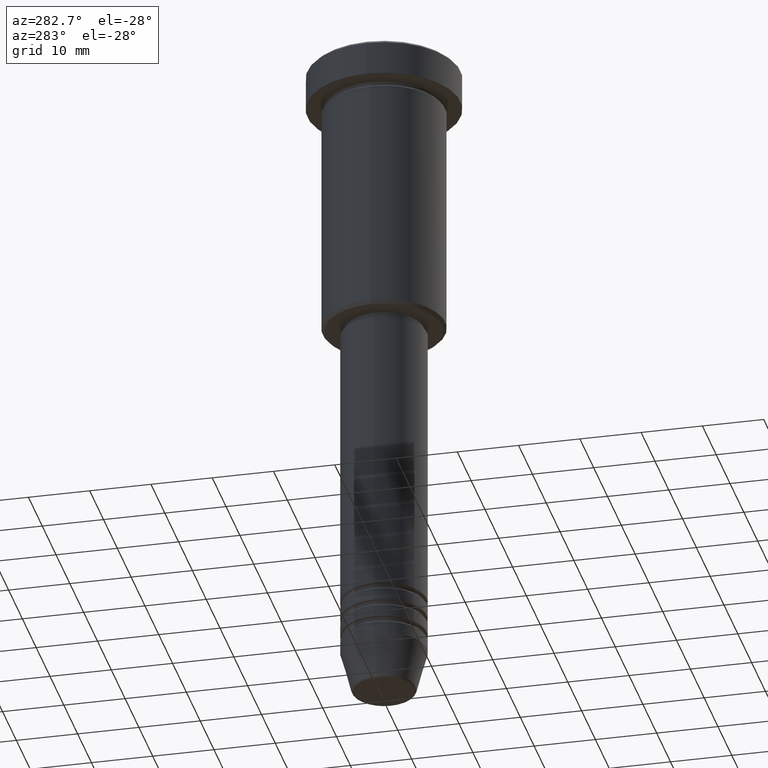
[diagram: clean part render]
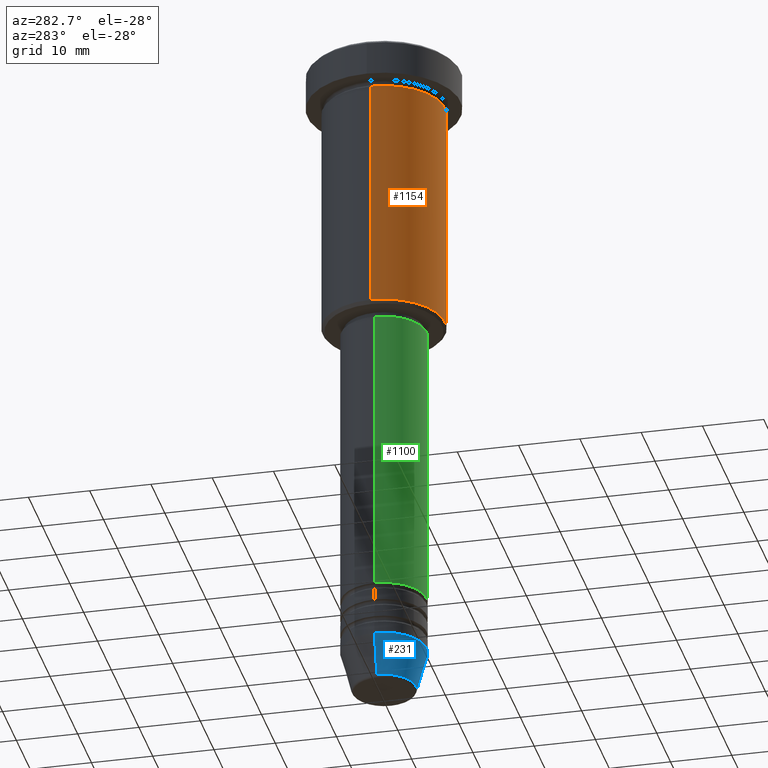
[diagram: same view with three faces highlighted in distinct colors, each labeled with its STEP entity id]
A machine part, auxiliary view with three faces highlighted in distinct colors.
Their STEP definitions:

[orange] entity #1154 — the highlighted cylindrical surface (partial cylindrical patch) has radius 10 mm, axis along (-0, -0, 1).
#22 = CARTESIAN_POINT ( 'NONE',  ( 10.00000000000000000, 0.000000000000000000, -6.999999999999996447 ) ) ;
#36 = DIRECTION ( 'NONE',  ( -0.000000000000000000, -0.000000000000000000, 1.000000000000000000 ) ) ;
#120 = CARTESIAN_POINT ( 'NONE',  ( 10.00000000000000000, 0.000000000000000000, 0.000000000000000000 ) ) ;
#183 = EDGE_CURVE ( 'NONE', #387, #371, #714, .T. ) ;
#224 = EDGE_CURVE ( 'NONE', #387, #999, #1149, .T. ) ;
#300 = CARTESIAN_POINT ( 'NONE',  ( 10.00000000000000000, 0.000000000000000000, -45.49999999999997158 ) ) ;
#331 = FACE_OUTER_BOUND ( 'NONE', #333, .T. ) ;
#333 = EDGE_LOOP ( 'NONE', ( #587, #533, #454, #705 ) ) ;
#339 = DIRECTION ( 'NONE',  ( 1.000000000000000000, 0.000000000000000000, 0.000000000000000000 ) ) ;
#371 = VERTEX_POINT ( 'NONE', #684 ) ;
#387 = VERTEX_POINT ( 'NONE', #765 ) ;
#454 = ORIENTED_EDGE ( 'NONE', *, *, #991, .T. ) ;
#461 = VECTOR ( 'NONE', #844, 1000.000000000000000 ) ;
#468 = DIRECTION ( 'NONE',  ( 1.000000000000000000, 0.000000000000000000, 0.000000000000000000 ) ) ;
#533 = ORIENTED_EDGE ( 'NONE', *, *, #224, .T. ) ;
#587 = ORIENTED_EDGE ( 'NONE', *, *, #183, .F. ) ;
#590 = EDGE_CURVE ( 'NONE', #371, #592, #751, .T. ) ;
#592 = VERTEX_POINT ( 'NONE', #22 ) ;
#632 = AXIS2_PLACEMENT_3D ( 'NONE', #829, #36, #748 ) ;
#641 = CARTESIAN_POINT ( 'NONE',  ( 0.000000000000000000, 0.000000000000000000, -6.999999999999996447 ) ) ;
#656 = AXIS2_PLACEMENT_3D ( 'NONE', #699, #868, #339 ) ;
#684 = CARTESIAN_POINT ( 'NONE',  ( -10.00000000000000000, 1.224646799147353256E-15, -6.999999999999996447 ) ) ;
#685 = CYLINDRICAL_SURFACE ( 'NONE', #656, 10.00000000000000000 ) ;
#699 = CARTESIAN_POINT ( 'NONE',  ( 0.000000000000000000, 0.000000000000000000, 0.000000000000000000 ) ) ;
#705 = ORIENTED_EDGE ( 'NONE', *, *, #590, .F. ) ;
#714 = LINE ( 'NONE', #988, #725 ) ;
#725 = VECTOR ( 'NONE', #1097, 1000.000000000000000 ) ;
#732 = AXIS2_PLACEMENT_3D ( 'NONE', #641, #1008, #468 ) ;
#748 = DIRECTION ( 'NONE',  ( -1.000000000000000000, 0.000000000000000000, 0.000000000000000000 ) ) ;
#751 = CIRCLE ( 'NONE', #732, 10.00000000000000000 ) ;
#765 = CARTESIAN_POINT ( 'NONE',  ( -10.00000000000000000, 1.224646799147353256E-15, -45.49999999999997158 ) ) ;
#829 = CARTESIAN_POINT ( 'NONE',  ( 0.000000000000000000, 0.000000000000000000, -45.49999999999997158 ) ) ;
#844 = DIRECTION ( 'NONE',  ( -0.000000000000000000, -0.000000000000000000, 1.000000000000000000 ) ) ;
#868 = DIRECTION ( 'NONE',  ( -0.000000000000000000, -0.000000000000000000, 1.000000000000000000 ) ) ;
#932 = LINE ( 'NONE', #120, #461 ) ;
#988 = CARTESIAN_POINT ( 'NONE',  ( -10.00000000000000000, 1.224646799147353256E-15, 0.000000000000000000 ) ) ;
#991 = EDGE_CURVE ( 'NONE', #999, #592, #932, .T. ) ;
#999 = VERTEX_POINT ( 'NONE', #300 ) ;
#1008 = DIRECTION ( 'NONE',  ( -0.000000000000000000, -0.000000000000000000, 1.000000000000000000 ) ) ;
#1097 = DIRECTION ( 'NONE',  ( -0.000000000000000000, -0.000000000000000000, 1.000000000000000000 ) ) ;
#1149 = CIRCLE ( 'NONE', #632, 10.00000000000000000 ) ;
#1154 = ADVANCED_FACE ( 'NONE', ( #331 ), #685, .T. ) ;

[blue] entity #231 — the highlighted conical surface has half-angle 15 deg.
#47 = LINE ( 'NONE', #409, #820 ) ;
#66 = EDGE_CURVE ( 'NONE', #563, #859, #47, .T. ) ;
#116 = DIRECTION ( 'NONE',  ( 1.000000000000000000, 0.000000000000000000, 0.000000000000000000 ) ) ;
#143 = CARTESIAN_POINT ( 'NONE',  ( -5.223655072137193045, 7.484830028987060174E-16, -110.6294095225512564 ) ) ;
#151 = ORIENTED_EDGE ( 'NONE', *, *, #571, .T. ) ;
#167 = CARTESIAN_POINT ( 'NONE',  ( 7.000000000000000000, 0.000000000000000000, -104.0000000000000142 ) ) ;
#170 = ORIENTED_EDGE ( 'NONE', *, *, #781, .F. ) ;
#231 = ADVANCED_FACE ( 'NONE', ( #281 ), #261, .T. ) ;
#235 = VERTEX_POINT ( 'NONE', #657 ) ;
#261 = CONICAL_SURFACE ( 'NONE', #497, 7.000000000000000000, 0.2617993877991500740 ) ;
#270 = DIRECTION ( 'NONE',  ( -0.000000000000000000, -0.000000000000000000, 1.000000000000000000 ) ) ;
#281 = FACE_OUTER_BOUND ( 'NONE', #954, .T. ) ;
#305 = VECTOR ( 'NONE', #961, 1000.000000000000000 ) ;
#344 = CIRCLE ( 'NONE', #655, 7.000000000000000000 ) ;
#390 = CARTESIAN_POINT ( 'NONE',  ( 0.000000000000000000, 0.000000000000000000, -104.0000000000000142 ) ) ;
#395 = DIRECTION ( 'NONE',  ( 1.000000000000000000, 0.000000000000000000, 0.000000000000000000 ) ) ;
#409 = CARTESIAN_POINT ( 'NONE',  ( 7.000000000000000000, 0.000000000000000000, -104.0000000000000142 ) ) ;
#497 = AXIS2_PLACEMENT_3D ( 'NONE', #390, #1024, #395 ) ;
#562 = CARTESIAN_POINT ( 'NONE',  ( 5.223655072137193045, 0.000000000000000000, -110.6294095225512564 ) ) ;
#563 = VERTEX_POINT ( 'NONE', #562 ) ;
#571 = EDGE_CURVE ( 'NONE', #1134, #563, #1054, .T. ) ;
#655 = AXIS2_PLACEMENT_3D ( 'NONE', #812, #1176, #973 ) ;
#657 = CARTESIAN_POINT ( 'NONE',  ( -7.000000000000000000, 8.572527594031473190E-16, -104.0000000000000142 ) ) ;
#733 = CARTESIAN_POINT ( 'NONE',  ( 0.000000000000000000, 0.000000000000000000, -110.6294095225512564 ) ) ;
#762 = ORIENTED_EDGE ( 'NONE', *, *, #66, .T. ) ;
#781 = EDGE_CURVE ( 'NONE', #235, #859, #344, .T. ) ;
#812 = CARTESIAN_POINT ( 'NONE',  ( 0.000000000000000000, 0.000000000000000000, -104.0000000000000142 ) ) ;
#820 = VECTOR ( 'NONE', #1135, 1000.000000000000000 ) ;
#859 = VERTEX_POINT ( 'NONE', #167 ) ;
#954 = EDGE_LOOP ( 'NONE', ( #1175, #151, #762, #170 ) ) ;
#961 = DIRECTION ( 'NONE',  ( -0.2588190451025213501, 3.169619151431772337E-17, 0.9659258262890680902 ) ) ;
#973 = DIRECTION ( 'NONE',  ( 1.000000000000000000, 0.000000000000000000, 0.000000000000000000 ) ) ;
#1024 = DIRECTION ( 'NONE',  ( -0.000000000000000000, -0.000000000000000000, 1.000000000000000000 ) ) ;
#1054 = CIRCLE ( 'NONE', #1106, 5.223655072137193045 ) ;
#1106 = AXIS2_PLACEMENT_3D ( 'NONE', #733, #270, #116 ) ;
#1112 = EDGE_CURVE ( 'NONE', #1134, #235, #1161, .T. ) ;
#1134 = VERTEX_POINT ( 'NONE', #143 ) ;
#1135 = DIRECTION ( 'NONE',  ( 0.2588190451025213501, 0.000000000000000000, 0.9659258262890680902 ) ) ;
#1139 = CARTESIAN_POINT ( 'NONE',  ( -7.000000000000000000, 8.572527594031473190E-16, -104.0000000000000142 ) ) ;
#1161 = LINE ( 'NONE', #1139, #305 ) ;
#1175 = ORIENTED_EDGE ( 'NONE', *, *, #1112, .F. ) ;
#1176 = DIRECTION ( 'NONE',  ( -0.000000000000000000, -0.000000000000000000, 1.000000000000000000 ) ) ;

[green] entity #1100 — the highlighted cylindrical surface (partial cylindrical patch) has radius 7 mm, axis along (-0, -0, 1).
#49 = AXIS2_PLACEMENT_3D ( 'NONE', #514, #877, #71 ) ;
#71 = DIRECTION ( 'NONE',  ( 1.000000000000000000, 0.000000000000000000, 0.000000000000000000 ) ) ;
#84 = LINE ( 'NONE', #788, #523 ) ;
#130 = VERTEX_POINT ( 'NONE', #441 ) ;
#196 = CIRCLE ( 'NONE', #49, 7.000000000000000000 ) ;
#292 = EDGE_CURVE ( 'NONE', #658, #130, #196, .T. ) ;
#303 = VERTEX_POINT ( 'NONE', #634 ) ;
#306 = CARTESIAN_POINT ( 'NONE',  ( -7.000000000000000000, 8.572527594031473190E-16, -94.99999999999997158 ) ) ;
#325 = VECTOR ( 'NONE', #389, 1000.000000000000000 ) ;
#389 = DIRECTION ( 'NONE',  ( -0.000000000000000000, -0.000000000000000000, 1.000000000000000000 ) ) ;
#410 = AXIS2_PLACEMENT_3D ( 'NONE', #967, #879, #1069 ) ;
#433 = EDGE_CURVE ( 'NONE', #658, #925, #789, .T. ) ;
#441 = CARTESIAN_POINT ( 'NONE',  ( 7.000000000000000000, 0.000000000000000000, -94.99999999999997158 ) ) ;
#450 = ORIENTED_EDGE ( 'NONE', *, *, #842, .T. ) ;
#514 = CARTESIAN_POINT ( 'NONE',  ( 0.000000000000000000, 0.000000000000000000, -94.99999999999997158 ) ) ;
#515 = FACE_OUTER_BOUND ( 'NONE', #795, .T. ) ;
#523 = VECTOR ( 'NONE', #1084, 1000.000000000000000 ) ;
#524 = CIRCLE ( 'NONE', #673, 7.000000000000000000 ) ;
#607 = CYLINDRICAL_SURFACE ( 'NONE', #410, 7.000000000000000000 ) ;
#634 = CARTESIAN_POINT ( 'NONE',  ( 7.000000000000000000, 0.000000000000000000, -47.00000000000000711 ) ) ;
#639 = CARTESIAN_POINT ( 'NONE',  ( -7.000000000000000000, 8.572527594031473190E-16, -47.00000000000000711 ) ) ;
#658 = VERTEX_POINT ( 'NONE', #306 ) ;
#673 = AXIS2_PLACEMENT_3D ( 'NONE', #911, #757, #1115 ) ;
#743 = CARTESIAN_POINT ( 'NONE',  ( -7.000000000000000000, 8.572527594031473190E-16, 0.000000000000000000 ) ) ;
#757 = DIRECTION ( 'NONE',  ( -0.000000000000000000, -0.000000000000000000, 1.000000000000000000 ) ) ;
#777 = ORIENTED_EDGE ( 'NONE', *, *, #433, .F. ) ;
#788 = CARTESIAN_POINT ( 'NONE',  ( 7.000000000000000000, 0.000000000000000000, 0.000000000000000000 ) ) ;
#789 = LINE ( 'NONE', #743, #325 ) ;
#795 = EDGE_LOOP ( 'NONE', ( #777, #1012, #450, #1052 ) ) ;
#842 = EDGE_CURVE ( 'NONE', #130, #303, #84, .T. ) ;
#877 = DIRECTION ( 'NONE',  ( -0.000000000000000000, -0.000000000000000000, 1.000000000000000000 ) ) ;
#879 = DIRECTION ( 'NONE',  ( -0.000000000000000000, -0.000000000000000000, 1.000000000000000000 ) ) ;
#911 = CARTESIAN_POINT ( 'NONE',  ( 0.000000000000000000, 0.000000000000000000, -47.00000000000000711 ) ) ;
#925 = VERTEX_POINT ( 'NONE', #639 ) ;
#967 = CARTESIAN_POINT ( 'NONE',  ( 0.000000000000000000, 0.000000000000000000, 0.000000000000000000 ) ) ;
#1012 = ORIENTED_EDGE ( 'NONE', *, *, #292, .T. ) ;
#1028 = EDGE_CURVE ( 'NONE', #925, #303, #524, .T. ) ;
#1052 = ORIENTED_EDGE ( 'NONE', *, *, #1028, .F. ) ;
#1069 = DIRECTION ( 'NONE',  ( 1.000000000000000000, 0.000000000000000000, 0.000000000000000000 ) ) ;
#1084 = DIRECTION ( 'NONE',  ( -0.000000000000000000, -0.000000000000000000, 1.000000000000000000 ) ) ;
#1100 = ADVANCED_FACE ( 'NONE', ( #515 ), #607, .T. ) ;
#1115 = DIRECTION ( 'NONE',  ( 1.000000000000000000, 0.000000000000000000, 0.000000000000000000 ) ) ;